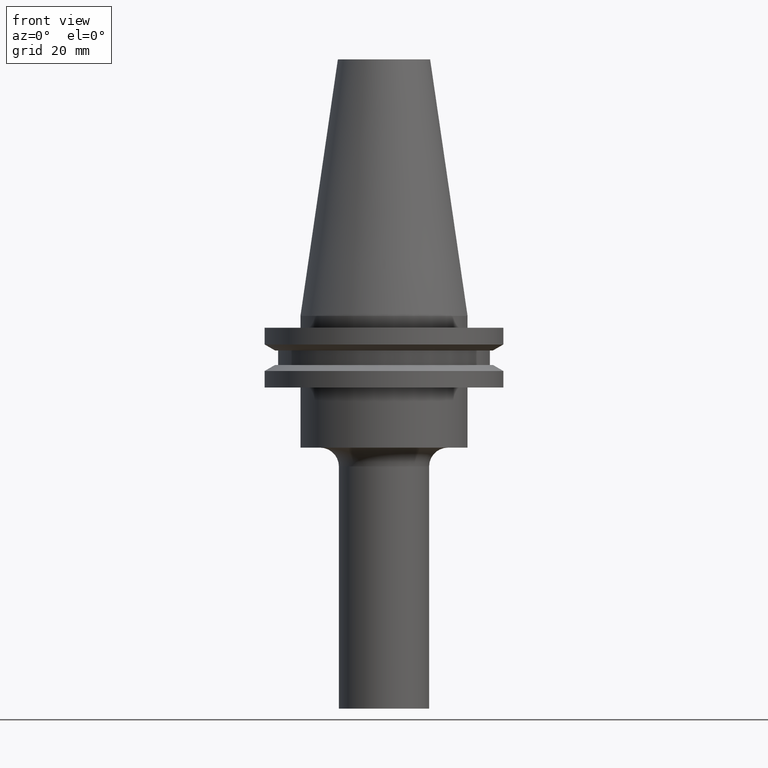
[diagram: clean part render]
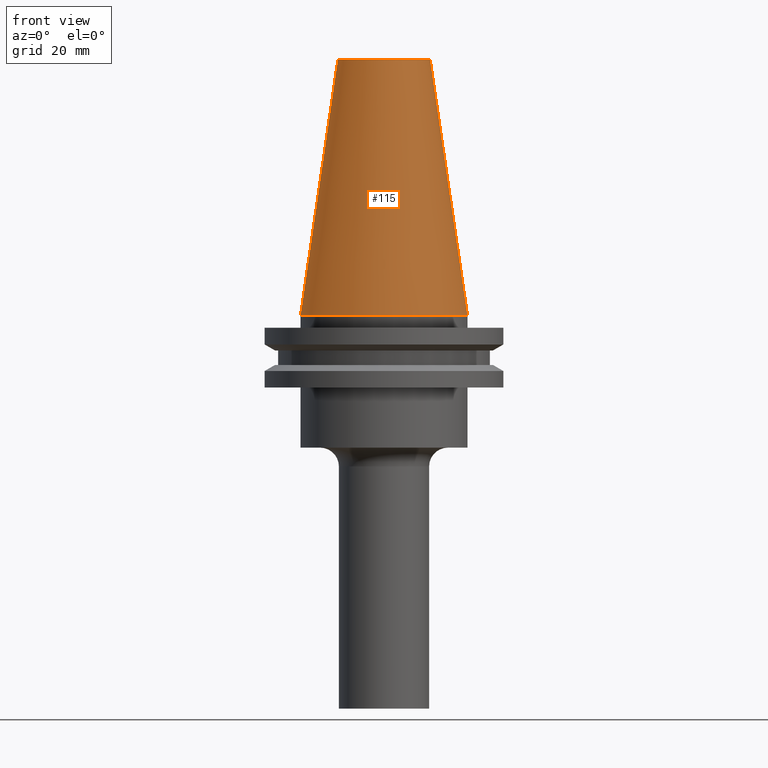
[diagram: same view with one face highlighted and labeled with its STEP entity id]
A machine part, front view. The second image highlights one B-rep face of the part: STEP entity #115.
In plain terms, the highlighted conical surface has half-angle 8.297 deg.
Its self-contained STEP definition (entity closure, byte-faithful):
#3 = AXIS2_PLACEMENT_3D ( 'NONE', #202, #434, #140 ) ;
#9 = DIRECTION ( 'NONE',  ( 1.000000000000000000, 0.000000000000000000, 0.000000000000000000 ) ) ;
#86 = DIRECTION ( 'NONE',  ( 1.000000000000000000, 0.000000000000000000, 0.000000000000000000 ) ) ;
#115 = ADVANCED_FACE ( 'NONE', ( #309 ), #341, .T. ) ;
#140 = DIRECTION ( 'NONE',  ( -1.000000000000000000, 0.000000000000000000, 0.000000000000000000 ) ) ;
#145 = CARTESIAN_POINT ( 'NONE',  ( 0.000000000000000000, 0.000000000000000000, 0.000000000000000000 ) ) ;
#163 = EDGE_CURVE ( 'NONE', #612, #186, #316, .T. ) ;
#167 = EDGE_CURVE ( 'NONE', #367, #326, #579, .T. ) ;
#186 = VERTEX_POINT ( 'NONE', #197 ) ;
#194 = VECTOR ( 'NONE', #689, 999.9999999999998863 ) ;
#197 = CARTESIAN_POINT ( 'NONE',  ( 12.27178102086201150, 2.112318622904291439E-15, 68.25000000000000000 ) ) ;
#202 = CARTESIAN_POINT ( 'NONE',  ( 0.000000000000000000, 0.000000000000000000, 0.000000000000000000 ) ) ;
#206 = ORIENTED_EDGE ( 'NONE', *, *, #167, .T. ) ;
#222 = EDGE_CURVE ( 'NONE', #612, #367, #756, .T. ) ;
#255 = AXIS2_PLACEMENT_3D ( 'NONE', #676, #545, #9 ) ;
#261 = CARTESIAN_POINT ( 'NONE',  ( -12.27178102086201150, 0.000000000000000000, 68.25000000000000000 ) ) ;
#270 = CARTESIAN_POINT ( 'NONE',  ( -22.22500000000000142, 0.000000000000000000, 0.000000000000000000 ) ) ;
#304 = VECTOR ( 'NONE', #458, 999.9999999999998863 ) ;
#309 = FACE_OUTER_BOUND ( 'NONE', #560, .T. ) ;
#316 = CIRCLE ( 'NONE', #255, 12.27178102086201150 ) ;
#325 = EDGE_CURVE ( 'NONE', #186, #326, #461, .T. ) ;
#326 = VERTEX_POINT ( 'NONE', #519 ) ;
#341 = CONICAL_SURFACE ( 'NONE', #3, 22.22500000000000142, 0.1448138465474119174 ) ;
#367 = VERTEX_POINT ( 'NONE', #445 ) ;
#391 = ORIENTED_EDGE ( 'NONE', *, *, #163, .F. ) ;
#427 = AXIS2_PLACEMENT_3D ( 'NONE', #145, #621, #86 ) ;
#434 = DIRECTION ( 'NONE',  ( 0.000000000000000000, 0.000000000000000000, -1.000000000000000000 ) ) ;
#445 = CARTESIAN_POINT ( 'NONE',  ( -22.22500000000000142, 0.000000000000000000, 0.000000000000000000 ) ) ;
#458 = DIRECTION ( 'NONE',  ( -0.1443082272672999711, 0.000000000000000000, -0.9895327864921755756 ) ) ;
#461 = LINE ( 'NONE', #512, #194 ) ;
#512 = CARTESIAN_POINT ( 'NONE',  ( 22.22500000000000142, 2.721777511104992849E-15, 0.000000000000000000 ) ) ;
#519 = CARTESIAN_POINT ( 'NONE',  ( 22.22500000000000142, 2.721777511104992849E-15, 0.000000000000000000 ) ) ;
#521 = ORIENTED_EDGE ( 'NONE', *, *, #222, .T. ) ;
#545 = DIRECTION ( 'NONE',  ( -0.000000000000000000, -0.000000000000000000, 1.000000000000000000 ) ) ;
#560 = EDGE_LOOP ( 'NONE', ( #571, #391, #521, #206 ) ) ;
#571 = ORIENTED_EDGE ( 'NONE', *, *, #325, .F. ) ;
#579 = CIRCLE ( 'NONE', #427, 22.22500000000000142 ) ;
#612 = VERTEX_POINT ( 'NONE', #261 ) ;
#621 = DIRECTION ( 'NONE',  ( -0.000000000000000000, -0.000000000000000000, 1.000000000000000000 ) ) ;
#676 = CARTESIAN_POINT ( 'NONE',  ( 0.000000000000000000, 0.000000000000000000, 68.25000000000000000 ) ) ;
#689 = DIRECTION ( 'NONE',  ( 0.1443082272672999711, 1.767266086135276757E-17, -0.9895327864921755756 ) ) ;
#756 = LINE ( 'NONE', #270, #304 ) ;